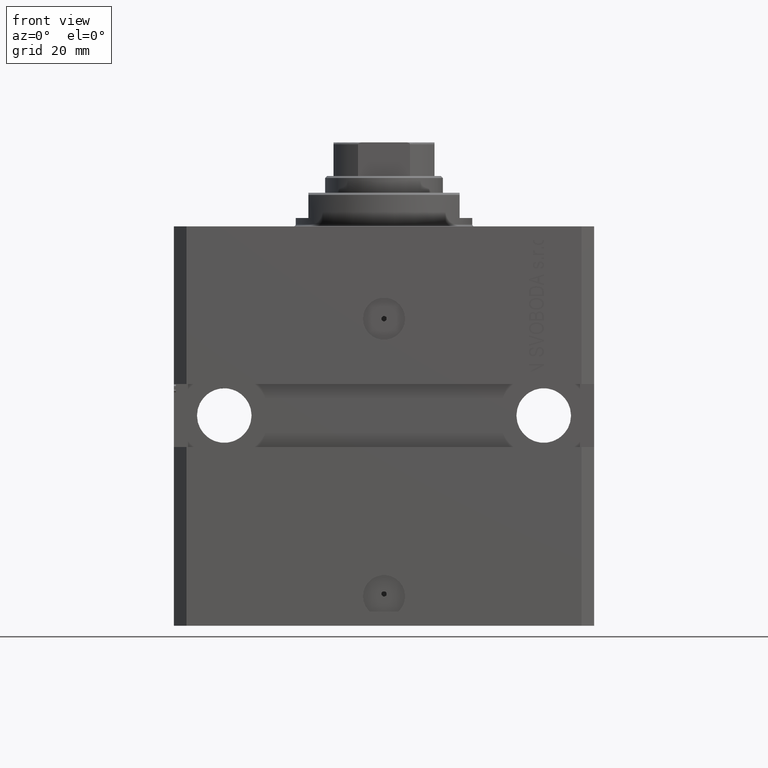
[diagram: clean part render]
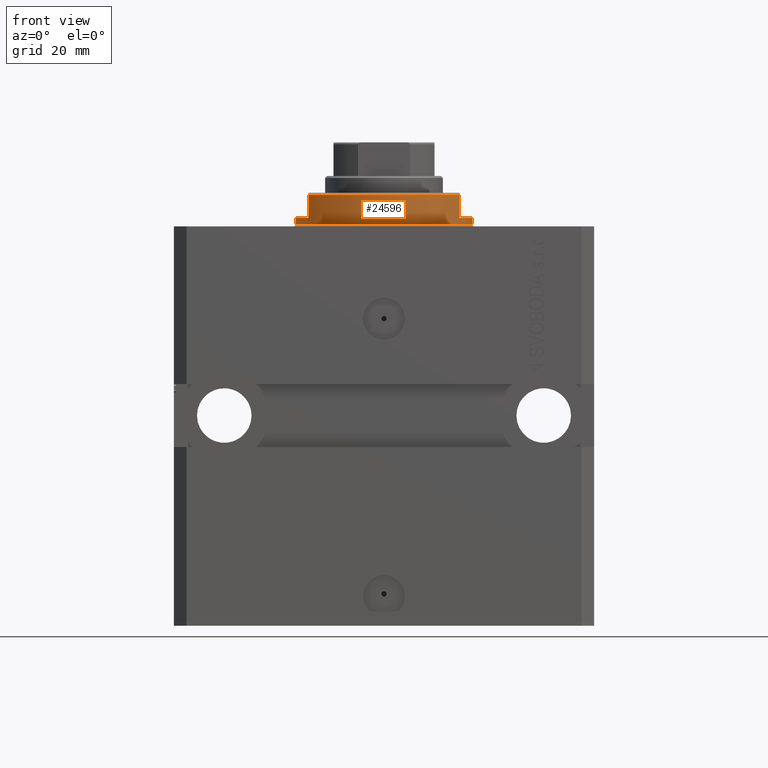
[diagram: same view with one face highlighted and labeled with its STEP entity id]
A machine part, front view. The second image highlights one B-rep face of the part: STEP entity #24596.
In plain terms, the highlighted cylindrical surface (partial cylindrical patch) has radius 21 mm, axis along (0, 0, -1).
Its self-contained STEP definition (entity closure, byte-faithful):
#936 = CYLINDRICAL_SURFACE ( 'NONE', #3635, 21.00000000000000000 ) ;
#1575 = CIRCLE ( 'NONE', #23926, 21.00000000000000000 ) ;
#1766 = DIRECTION ( 'NONE',  ( -0.000000000000000000, -0.000000000000000000, 1.000000000000000000 ) ) ;
#1863 = DIRECTION ( 'NONE',  ( -0.000000000000000000, -0.000000000000000000, 1.000000000000000000 ) ) ;
#2592 = ORIENTED_EDGE ( 'NONE', *, *, #9111, .F. ) ;
#3579 = CARTESIAN_POINT ( 'NONE',  ( 18.00000000000000000, -10.81665382639197048, -8.000000000000000000 ) ) ;
#3635 = AXIS2_PLACEMENT_3D ( 'NONE', #18544, #33270, #30368 ) ;
#4542 = ORIENTED_EDGE ( 'NONE', *, *, #41098, .F. ) ;
#4820 = VERTEX_POINT ( 'NONE', #43685 ) ;
#5007 = CARTESIAN_POINT ( 'NONE',  ( 18.00000000000000000, -10.81665382639197048, -2.000000000000000000 ) ) ;
#5736 = DIRECTION ( 'NONE',  ( 0.000000000000000000, 0.000000000000000000, 1.000000000000000000 ) ) ;
#6475 = DIRECTION ( 'NONE',  ( -1.000000000000000000, 0.000000000000000000, 0.000000000000000000 ) ) ;
#8217 = ORIENTED_EDGE ( 'NONE', *, *, #42285, .T. ) ;
#9089 = CARTESIAN_POINT ( 'NONE',  ( 21.00000000000000000, 0.000000000000000000, -8.000000000000000000 ) ) ;
#9111 = EDGE_CURVE ( 'NONE', #43463, #43114, #21925, .T. ) ;
#10951 = CARTESIAN_POINT ( 'NONE',  ( 0.000000000000000000, 0.000000000000000000, -2.000000000000000000 ) ) ;
#11298 = FACE_OUTER_BOUND ( 'NONE', #28160, .T. ) ;
#11820 = ORIENTED_EDGE ( 'NONE', *, *, #15926, .T. ) ;
#11860 = DIRECTION ( 'NONE',  ( -0.000000000000000000, -0.000000000000000000, -1.000000000000000000 ) ) ;
#11908 = AXIS2_PLACEMENT_3D ( 'NONE', #35160, #5736, #20683 ) ;
#12511 = DIRECTION ( 'NONE',  ( 0.000000000000000000, 0.000000000000000000, -1.000000000000000000 ) ) ;
#13371 = EDGE_CURVE ( 'NONE', #36537, #4820, #30860, .T. ) ;
#14004 = CARTESIAN_POINT ( 'NONE',  ( 21.00000000000000000, 0.000000000000000000, -2.000000000000000000 ) ) ;
#14226 = CIRCLE ( 'NONE', #11908, 21.00000000000000000 ) ;
#15744 = CARTESIAN_POINT ( 'NONE',  ( -21.00000000000000000, 2.571758278209441661E-15, -0.5000000000000004441 ) ) ;
#15926 = EDGE_CURVE ( 'NONE', #4820, #43114, #14226, .T. ) ;
#16157 = EDGE_CURVE ( 'NONE', #21787, #43463, #35815, .T. ) ;
#16932 = ORIENTED_EDGE ( 'NONE', *, *, #13371, .T. ) ;
#18544 = CARTESIAN_POINT ( 'NONE',  ( 0.000000000000000000, 0.000000000000000000, -8.000000000000000000 ) ) ;
#18999 = DIRECTION ( 'NONE',  ( 0.000000000000000000, 0.000000000000000000, -1.000000000000000000 ) ) ;
#19582 = ORIENTED_EDGE ( 'NONE', *, *, #44463, .T. ) ;
#20683 = DIRECTION ( 'NONE',  ( -1.000000000000000000, 0.000000000000000000, 0.000000000000000000 ) ) ;
#21787 = VERTEX_POINT ( 'NONE', #14004 ) ;
#21826 = VERTEX_POINT ( 'NONE', #39574 ) ;
#21925 = LINE ( 'NONE', #3579, #27217 ) ;
#22075 = VERTEX_POINT ( 'NONE', #15744 ) ;
#23492 = AXIS2_PLACEMENT_3D ( 'NONE', #38563, #39032, #6475 ) ;
#23717 = CARTESIAN_POINT ( 'NONE',  ( -21.00000000000000000, 2.571758278209441661E-15, -8.000000000000000000 ) ) ;
#23746 = CARTESIAN_POINT ( 'NONE',  ( -21.00000000000000000, 2.571758278209441661E-15, -2.000000000000000000 ) ) ;
#23926 = AXIS2_PLACEMENT_3D ( 'NONE', #10951, #36996, #33155 ) ;
#24596 = ADVANCED_FACE ( 'NONE', ( #11298 ), #936, .T. ) ;
#25499 = CARTESIAN_POINT ( 'NONE',  ( -18.00000000000000000, -10.81665382639197048, -2.000000000000000000 ) ) ;
#26655 = CARTESIAN_POINT ( 'NONE',  ( 18.00000000000000000, -10.81665382639197048, -7.500000000000016875 ) ) ;
#27034 = AXIS2_PLACEMENT_3D ( 'NONE', #44905, #11860, #41291 ) ;
#27217 = VECTOR ( 'NONE', #18999, 1000.000000000000000 ) ;
#28160 = EDGE_LOOP ( 'NONE', ( #40394, #4542, #16932, #11820, #2592, #39001, #19582, #8217 ) ) ;
#29821 = LINE ( 'NONE', #23717, #30056 ) ;
#30056 = VECTOR ( 'NONE', #1766, 1000.000000000000000 ) ;
#30368 = DIRECTION ( 'NONE',  ( 1.000000000000000000, 0.000000000000000000, 0.000000000000000000 ) ) ;
#30860 = LINE ( 'NONE', #45551, #47267 ) ;
#31529 = VERTEX_POINT ( 'NONE', #23746 ) ;
#33155 = DIRECTION ( 'NONE',  ( -1.000000000000000000, 0.000000000000000000, 0.000000000000000000 ) ) ;
#33270 = DIRECTION ( 'NONE',  ( -0.000000000000000000, -0.000000000000000000, 1.000000000000000000 ) ) ;
#35160 = CARTESIAN_POINT ( 'NONE',  ( 0.000000000000000000, 0.000000000000000000, -7.500000000000016875 ) ) ;
#35815 = CIRCLE ( 'NONE', #23492, 21.00000000000000000 ) ;
#36537 = VERTEX_POINT ( 'NONE', #25499 ) ;
#36668 = EDGE_CURVE ( 'NONE', #31529, #22075, #29821, .T. ) ;
#36996 = DIRECTION ( 'NONE',  ( 0.000000000000000000, 0.000000000000000000, -1.000000000000000000 ) ) ;
#38563 = CARTESIAN_POINT ( 'NONE',  ( 0.000000000000000000, 0.000000000000000000, -2.000000000000000000 ) ) ;
#39001 = ORIENTED_EDGE ( 'NONE', *, *, #16157, .F. ) ;
#39032 = DIRECTION ( 'NONE',  ( 0.000000000000000000, 0.000000000000000000, -1.000000000000000000 ) ) ;
#39329 = CIRCLE ( 'NONE', #27034, 21.00000000000000000 ) ;
#39574 = CARTESIAN_POINT ( 'NONE',  ( 21.00000000000000000, 0.000000000000000000, -0.5000000000000004441 ) ) ;
#40210 = VECTOR ( 'NONE', #1863, 1000.000000000000000 ) ;
#40394 = ORIENTED_EDGE ( 'NONE', *, *, #36668, .F. ) ;
#41098 = EDGE_CURVE ( 'NONE', #36537, #31529, #1575, .T. ) ;
#41291 = DIRECTION ( 'NONE',  ( 1.000000000000000000, 0.000000000000000000, 0.000000000000000000 ) ) ;
#42285 = EDGE_CURVE ( 'NONE', #21826, #22075, #39329, .T. ) ;
#43114 = VERTEX_POINT ( 'NONE', #26655 ) ;
#43463 = VERTEX_POINT ( 'NONE', #5007 ) ;
#43685 = CARTESIAN_POINT ( 'NONE',  ( -18.00000000000000000, -10.81665382639197048, -7.500000000000017764 ) ) ;
#44463 = EDGE_CURVE ( 'NONE', #21787, #21826, #45045, .T. ) ;
#44905 = CARTESIAN_POINT ( 'NONE',  ( 0.000000000000000000, 0.000000000000000000, -0.5000000000000004441 ) ) ;
#45045 = LINE ( 'NONE', #9089, #40210 ) ;
#45551 = CARTESIAN_POINT ( 'NONE',  ( -18.00000000000000000, -10.81665382639197048, -8.000000000000000000 ) ) ;
#47267 = VECTOR ( 'NONE', #12511, 1000.000000000000000 ) ;